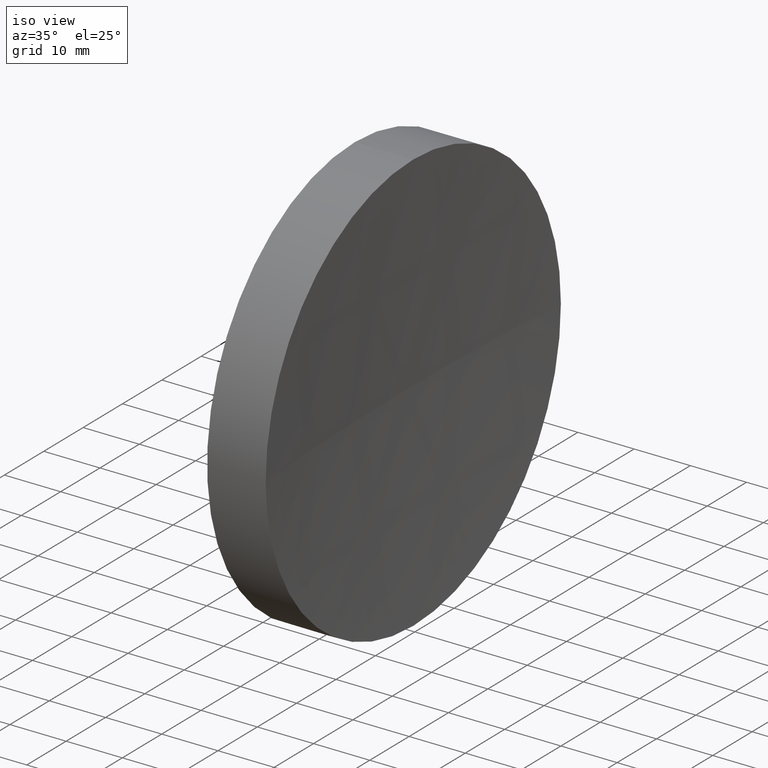
[diagram: clean part render]
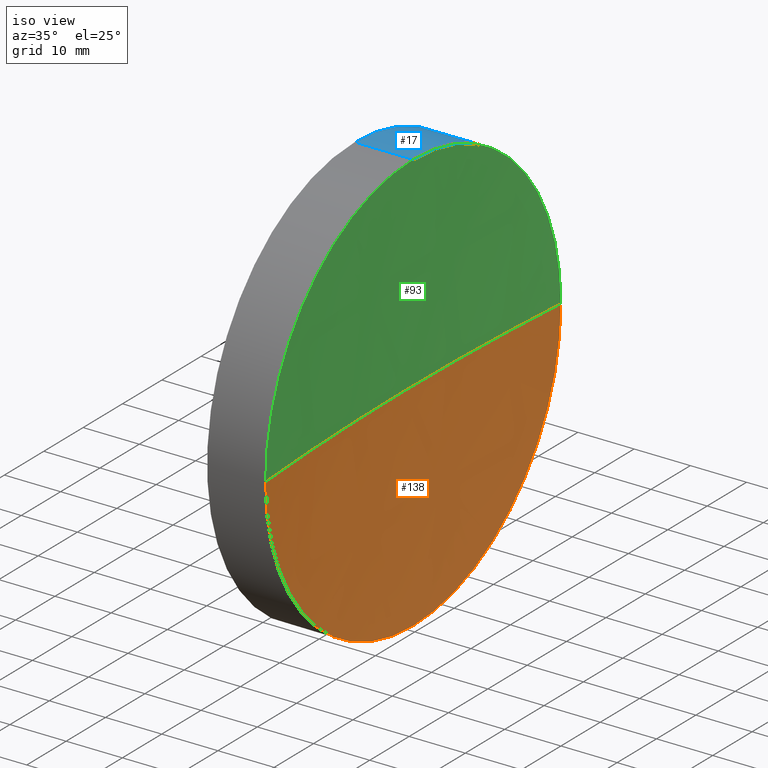
[diagram: same view with three faces highlighted in distinct colors, each labeled with its STEP entity id]
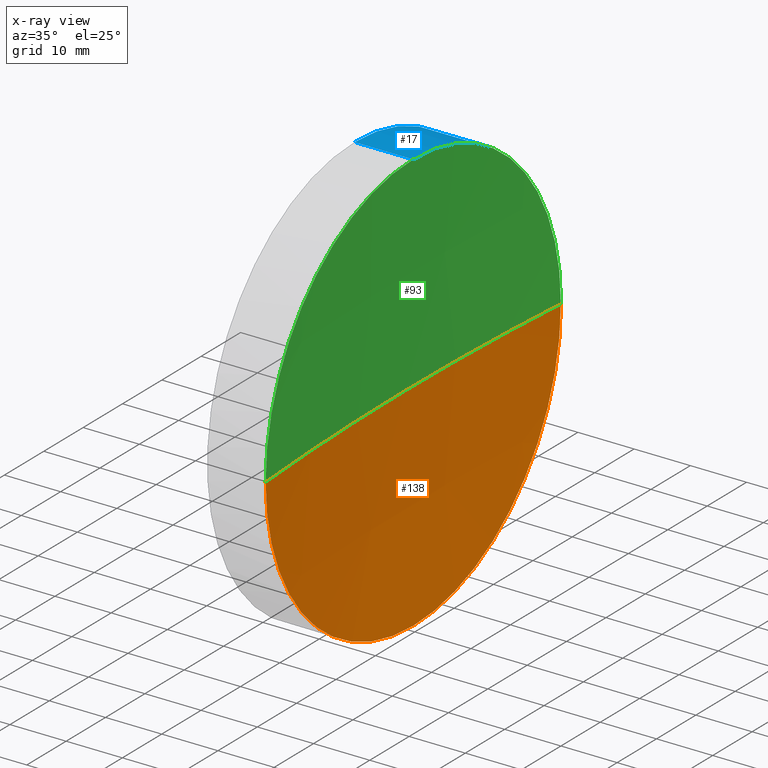
[diagram: x-ray of the same camera — body ghosted, the three highlighted faces saturated]
A machine part, iso view with three faces highlighted in distinct colors.
The next image is the same camera in x-ray (body ghosted, the three faces saturated) — at least one of them is partly hidden behind the body in this view.
Their STEP definitions:

[orange] entity #138 — the highlighted spherical surface has radius 500 mm.
#1 = DIRECTION ( 'NONE',  ( 0.0000000000000000000, -1.000000000000000000, -1.224646799147353200E-016 ) ) ;
#4 = CARTESIAN_POINT ( 'NONE',  ( 240.6078455750809400, 138.7560422467448700, 0.0000000000000000000 ) ) ;
#5 = DIRECTION ( 'NONE',  ( 0.0000000000000000000, -1.000000000000000000, 0.0000000000000000000 ) ) ;
#10 = FACE_OUTER_BOUND ( 'NONE', #133, .T. ) ;
#20 = EDGE_CURVE ( 'NONE', #171, #34, #143, .T. ) ;
#24 = EDGE_CURVE ( 'NONE', #182, #171, #41, .T. ) ;
#28 = AXIS2_PLACEMENT_3D ( 'NONE', #33, #31, #136 ) ;
#31 = DIRECTION ( 'NONE',  ( -1.000000000000000000, -0.0000000000000000000, -0.0000000000000000000 ) ) ;
#33 = CARTESIAN_POINT ( 'NONE',  ( 240.6078455750809400, 138.7560422467448700, 0.0000000000000000000 ) ) ;
#34 = VERTEX_POINT ( 'NONE', #175 ) ;
#39 = ORIENTED_EDGE ( 'NONE', *, *, #78, .F. ) ;
#41 = CIRCLE ( 'NONE', #28, 37.50000000000000700 ) ;
#56 = DIRECTION ( 'NONE',  ( 0.0000000000000000000, -1.224646799147353200E-016, 1.000000000000000000 ) ) ;
#65 = ORIENTED_EDGE ( 'NONE', *, *, #69, .T. ) ;
#69 = EDGE_CURVE ( 'NONE', #182, #89, #121, .T. ) ;
#78 = EDGE_CURVE ( 'NONE', #34, #89, #151, .T. ) ;
#81 = DIRECTION ( 'NONE',  ( 0.0000000000000000000, 0.0000000000000000000, -1.000000000000000000 ) ) ;
#84 = AXIS2_PLACEMENT_3D ( 'NONE', #156, #81, #157 ) ;
#87 = CARTESIAN_POINT ( 'NONE',  ( 239.1996124545592300, 138.7560422467449000, 0.0000000000000000000 ) ) ;
#88 = DIRECTION ( 'NONE',  ( 0.0000000000000000000, 0.0000000000000000000, 1.000000000000000000 ) ) ;
#89 = VERTEX_POINT ( 'NONE', #87 ) ;
#90 = AXIS2_PLACEMENT_3D ( 'NONE', #4, #162, #88 ) ;
#94 = CARTESIAN_POINT ( 'NONE',  ( 739.1996124545592000, 138.7560422467449300, 0.0000000000000000000 ) ) ;
#103 = AXIS2_PLACEMENT_3D ( 'NONE', #94, #155, #5 ) ;
#108 = AXIS2_PLACEMENT_3D ( 'NONE', #149, #56, #1 ) ;
#121 = CIRCLE ( 'NONE', #108, 500.0000000000000000 ) ;
#133 = EDGE_LOOP ( 'NONE', ( #148, #65, #39, #185 ) ) ;
#136 = DIRECTION ( 'NONE',  ( 0.0000000000000000000, 0.0000000000000000000, 1.000000000000000000 ) ) ;
#138 = ADVANCED_FACE ( 'NONE', ( #10 ), #147, .F. ) ;
#143 = CIRCLE ( 'NONE', #90, 37.50000000000000700 ) ;
#144 = CARTESIAN_POINT ( 'NONE',  ( 240.6078455750809400, 138.7560422467448700, -37.50000000000000700 ) ) ;
#147 = SPHERICAL_SURFACE ( 'NONE', #103, 500.0000000000000000 ) ;
#148 = ORIENTED_EDGE ( 'NONE', *, *, #24, .F. ) ;
#149 = CARTESIAN_POINT ( 'NONE',  ( 739.1996124545592000, 138.7560422467449300, 0.0000000000000000000 ) ) ;
#151 = CIRCLE ( 'NONE', #84, 500.0000000000000000 ) ;
#155 = DIRECTION ( 'NONE',  ( 0.0000000000000000000, 0.0000000000000000000, 1.000000000000000000 ) ) ;
#156 = CARTESIAN_POINT ( 'NONE',  ( 739.1996124545592000, 138.7560422467449300, 0.0000000000000000000 ) ) ;
#157 = DIRECTION ( 'NONE',  ( -1.000000000000000000, 0.0000000000000000000, 0.0000000000000000000 ) ) ;
#162 = DIRECTION ( 'NONE',  ( -1.000000000000000000, -0.0000000000000000000, -0.0000000000000000000 ) ) ;
#171 = VERTEX_POINT ( 'NONE', #144 ) ;
#175 = CARTESIAN_POINT ( 'NONE',  ( 240.6078455750809700, 101.2560422467449100, 0.0000000000000000000 ) ) ;
#180 = CARTESIAN_POINT ( 'NONE',  ( 240.6078455750809700, 176.2560422467449000, 4.592425496802570400E-015 ) ) ;
#182 = VERTEX_POINT ( 'NONE', #180 ) ;
#185 = ORIENTED_EDGE ( 'NONE', *, *, #20, .F. ) ;

[blue] entity #17 — the highlighted cylindrical surface (partial cylindrical patch) has radius 37.5 mm, axis along (-1, -0, -0).
#11 = VECTOR ( 'NONE', #85, 1000.000000000000000 ) ;
#13 = CARTESIAN_POINT ( 'NONE',  ( 230.1996119052661200, 138.7560422467448700, -37.50000000000000700 ) ) ;
#14 = CARTESIAN_POINT ( 'NONE',  ( 240.6078455750809400, 138.7560422467448700, 0.0000000000000000000 ) ) ;
#17 = ADVANCED_FACE ( 'NONE', ( #96 ), #21, .T. ) ;
#21 = CYLINDRICAL_SURFACE ( 'NONE', #70, 37.50000000000000700 ) ;
#24 = EDGE_CURVE ( 'NONE', #182, #171, #41, .T. ) ;
#25 = EDGE_LOOP ( 'NONE', ( #183, #124, #166, #158, #163 ) ) ;
#27 = DIRECTION ( 'NONE',  ( 0.0000000000000000000, 0.0000000000000000000, 1.000000000000000000 ) ) ;
#28 = AXIS2_PLACEMENT_3D ( 'NONE', #33, #31, #136 ) ;
#31 = DIRECTION ( 'NONE',  ( -1.000000000000000000, -0.0000000000000000000, -0.0000000000000000000 ) ) ;
#32 = DIRECTION ( 'NONE',  ( -1.000000000000000000, -0.0000000000000000000, -0.0000000000000000000 ) ) ;
#33 = CARTESIAN_POINT ( 'NONE',  ( 240.6078455750809400, 138.7560422467448700, 0.0000000000000000000 ) ) ;
#41 = CIRCLE ( 'NONE', #28, 37.50000000000000700 ) ;
#42 = EDGE_CURVE ( 'NONE', #178, #182, #91, .T. ) ;
#47 = CARTESIAN_POINT ( 'NONE',  ( 230.1996119052661200, 138.7560422467448700, 37.50000000000000700 ) ) ;
#48 = EDGE_CURVE ( 'NONE', #68, #127, #137, .T. ) ;
#59 = EDGE_CURVE ( 'NONE', #171, #127, #102, .T. ) ;
#68 = VERTEX_POINT ( 'NONE', #47 ) ;
#70 = AXIS2_PLACEMENT_3D ( 'NONE', #77, #173, #27 ) ;
#72 = CARTESIAN_POINT ( 'NONE',  ( 217.9702860043302100, 138.7560422467448700, -37.50000000000000700 ) ) ;
#73 = VECTOR ( 'NONE', #181, 1000.000000000000000 ) ;
#74 = DIRECTION ( 'NONE',  ( 0.0000000000000000000, 0.0000000000000000000, 1.000000000000000000 ) ) ;
#77 = CARTESIAN_POINT ( 'NONE',  ( 217.9702860043302100, 138.7560422467448700, 0.0000000000000000000 ) ) ;
#85 = DIRECTION ( 'NONE',  ( -1.000000000000000000, -0.0000000000000000000, -0.0000000000000000000 ) ) ;
#91 = CIRCLE ( 'NONE', #170, 37.50000000000000700 ) ;
#96 = FACE_OUTER_BOUND ( 'NONE', #25, .T. ) ;
#102 = LINE ( 'NONE', #72, #11 ) ;
#109 = DIRECTION ( 'NONE',  ( -1.000000000000000000, -0.0000000000000000000, -0.0000000000000000000 ) ) ;
#113 = CARTESIAN_POINT ( 'NONE',  ( 240.6078455750809400, 138.7560422467448700, 37.50000000000000700 ) ) ;
#120 = AXIS2_PLACEMENT_3D ( 'NONE', #154, #109, #160 ) ;
#124 = ORIENTED_EDGE ( 'NONE', *, *, #59, .T. ) ;
#126 = LINE ( 'NONE', #184, #73 ) ;
#127 = VERTEX_POINT ( 'NONE', #13 ) ;
#136 = DIRECTION ( 'NONE',  ( 0.0000000000000000000, 0.0000000000000000000, 1.000000000000000000 ) ) ;
#137 = CIRCLE ( 'NONE', #120, 37.50000000000000700 ) ;
#140 = EDGE_CURVE ( 'NONE', #178, #68, #126, .T. ) ;
#144 = CARTESIAN_POINT ( 'NONE',  ( 240.6078455750809400, 138.7560422467448700, -37.50000000000000700 ) ) ;
#154 = CARTESIAN_POINT ( 'NONE',  ( 230.1996119052661200, 138.7560422467448700, 0.0000000000000000000 ) ) ;
#158 = ORIENTED_EDGE ( 'NONE', *, *, #140, .F. ) ;
#160 = DIRECTION ( 'NONE',  ( 0.0000000000000000000, 0.0000000000000000000, 1.000000000000000000 ) ) ;
#163 = ORIENTED_EDGE ( 'NONE', *, *, #42, .T. ) ;
#166 = ORIENTED_EDGE ( 'NONE', *, *, #48, .F. ) ;
#170 = AXIS2_PLACEMENT_3D ( 'NONE', #14, #32, #74 ) ;
#171 = VERTEX_POINT ( 'NONE', #144 ) ;
#173 = DIRECTION ( 'NONE',  ( -1.000000000000000000, -0.0000000000000000000, -0.0000000000000000000 ) ) ;
#178 = VERTEX_POINT ( 'NONE', #113 ) ;
#180 = CARTESIAN_POINT ( 'NONE',  ( 240.6078455750809700, 176.2560422467449000, 4.592425496802570400E-015 ) ) ;
#181 = DIRECTION ( 'NONE',  ( -1.000000000000000000, -0.0000000000000000000, -0.0000000000000000000 ) ) ;
#182 = VERTEX_POINT ( 'NONE', #180 ) ;
#183 = ORIENTED_EDGE ( 'NONE', *, *, #24, .T. ) ;
#184 = CARTESIAN_POINT ( 'NONE',  ( 217.9702860043302100, 138.7560422467448700, 37.50000000000000700 ) ) ;

[green] entity #93 — the highlighted spherical surface has radius 500 mm.
#1 = DIRECTION ( 'NONE',  ( 0.0000000000000000000, -1.000000000000000000, -1.224646799147353200E-016 ) ) ;
#7 = CARTESIAN_POINT ( 'NONE',  ( 240.6078455750809400, 138.7560422467448700, 0.0000000000000000000 ) ) ;
#14 = CARTESIAN_POINT ( 'NONE',  ( 240.6078455750809400, 138.7560422467448700, 0.0000000000000000000 ) ) ;
#22 = DIRECTION ( 'NONE',  ( 0.0000000000000000000, 0.0000000000000000000, 1.000000000000000000 ) ) ;
#32 = DIRECTION ( 'NONE',  ( -1.000000000000000000, -0.0000000000000000000, -0.0000000000000000000 ) ) ;
#34 = VERTEX_POINT ( 'NONE', #175 ) ;
#42 = EDGE_CURVE ( 'NONE', #178, #182, #91, .T. ) ;
#49 = AXIS2_PLACEMENT_3D ( 'NONE', #7, #177, #22 ) ;
#56 = DIRECTION ( 'NONE',  ( 0.0000000000000000000, -1.224646799147353200E-016, 1.000000000000000000 ) ) ;
#57 = AXIS2_PLACEMENT_3D ( 'NONE', #58, #63, #125 ) ;
#58 = CARTESIAN_POINT ( 'NONE',  ( 739.1996124545592000, 138.7560422467449300, 0.0000000000000000000 ) ) ;
#63 = DIRECTION ( 'NONE',  ( 0.0000000000000000000, 0.0000000000000000000, 1.000000000000000000 ) ) ;
#69 = EDGE_CURVE ( 'NONE', #182, #89, #121, .T. ) ;
#71 = EDGE_CURVE ( 'NONE', #34, #178, #118, .T. ) ;
#74 = DIRECTION ( 'NONE',  ( 0.0000000000000000000, 0.0000000000000000000, 1.000000000000000000 ) ) ;
#78 = EDGE_CURVE ( 'NONE', #34, #89, #151, .T. ) ;
#81 = DIRECTION ( 'NONE',  ( 0.0000000000000000000, 0.0000000000000000000, -1.000000000000000000 ) ) ;
#84 = AXIS2_PLACEMENT_3D ( 'NONE', #156, #81, #157 ) ;
#86 = SPHERICAL_SURFACE ( 'NONE', #57, 500.0000000000000000 ) ;
#87 = CARTESIAN_POINT ( 'NONE',  ( 239.1996124545592300, 138.7560422467449000, 0.0000000000000000000 ) ) ;
#89 = VERTEX_POINT ( 'NONE', #87 ) ;
#91 = CIRCLE ( 'NONE', #170, 37.50000000000000700 ) ;
#93 = ADVANCED_FACE ( 'NONE', ( #98 ), #86, .F. ) ;
#98 = FACE_OUTER_BOUND ( 'NONE', #117, .T. ) ;
#106 = ORIENTED_EDGE ( 'NONE', *, *, #42, .F. ) ;
#107 = ORIENTED_EDGE ( 'NONE', *, *, #71, .F. ) ;
#108 = AXIS2_PLACEMENT_3D ( 'NONE', #149, #56, #1 ) ;
#110 = ORIENTED_EDGE ( 'NONE', *, *, #78, .T. ) ;
#113 = CARTESIAN_POINT ( 'NONE',  ( 240.6078455750809400, 138.7560422467448700, 37.50000000000000700 ) ) ;
#115 = ORIENTED_EDGE ( 'NONE', *, *, #69, .F. ) ;
#117 = EDGE_LOOP ( 'NONE', ( #115, #106, #107, #110 ) ) ;
#118 = CIRCLE ( 'NONE', #49, 37.50000000000000700 ) ;
#121 = CIRCLE ( 'NONE', #108, 500.0000000000000000 ) ;
#125 = DIRECTION ( 'NONE',  ( 0.0000000000000000000, -1.000000000000000000, 0.0000000000000000000 ) ) ;
#149 = CARTESIAN_POINT ( 'NONE',  ( 739.1996124545592000, 138.7560422467449300, 0.0000000000000000000 ) ) ;
#151 = CIRCLE ( 'NONE', #84, 500.0000000000000000 ) ;
#156 = CARTESIAN_POINT ( 'NONE',  ( 739.1996124545592000, 138.7560422467449300, 0.0000000000000000000 ) ) ;
#157 = DIRECTION ( 'NONE',  ( -1.000000000000000000, 0.0000000000000000000, 0.0000000000000000000 ) ) ;
#170 = AXIS2_PLACEMENT_3D ( 'NONE', #14, #32, #74 ) ;
#175 = CARTESIAN_POINT ( 'NONE',  ( 240.6078455750809700, 101.2560422467449100, 0.0000000000000000000 ) ) ;
#177 = DIRECTION ( 'NONE',  ( -1.000000000000000000, -0.0000000000000000000, -0.0000000000000000000 ) ) ;
#178 = VERTEX_POINT ( 'NONE', #113 ) ;
#180 = CARTESIAN_POINT ( 'NONE',  ( 240.6078455750809700, 176.2560422467449000, 4.592425496802570400E-015 ) ) ;
#182 = VERTEX_POINT ( 'NONE', #180 ) ;